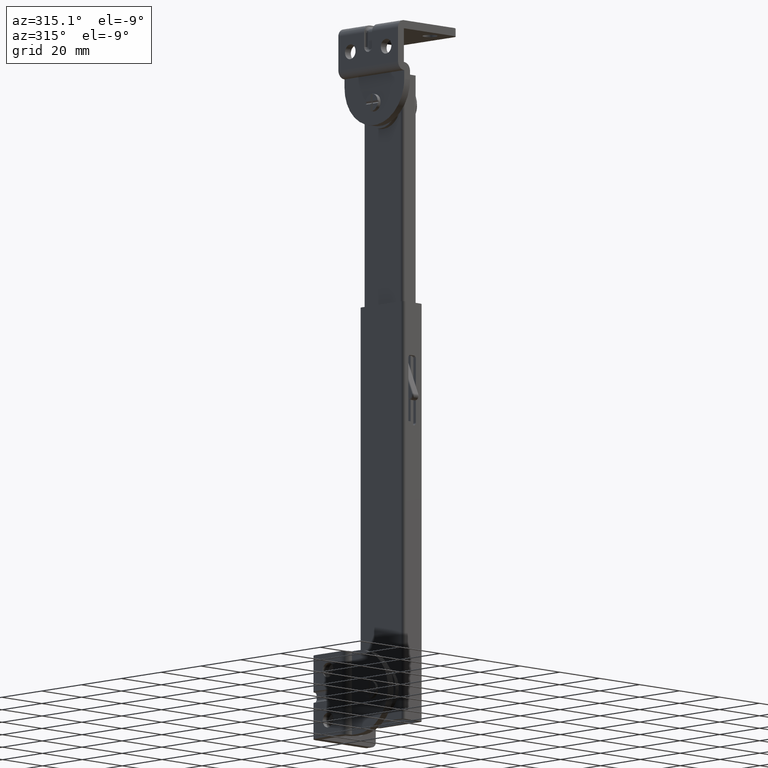
[diagram: clean part render]
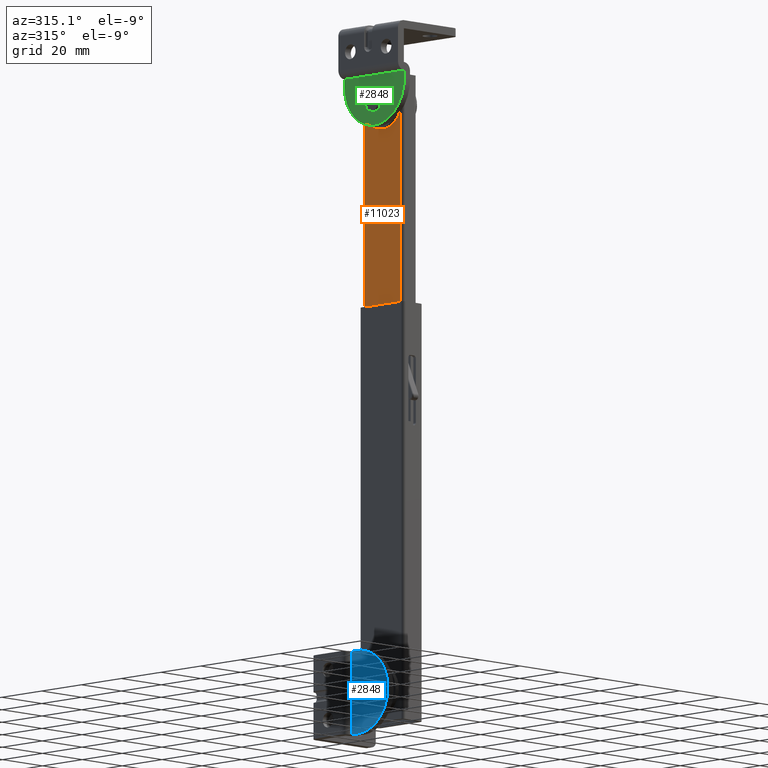
[diagram: same view with three faces highlighted in distinct colors, each labeled with its STEP entity id]
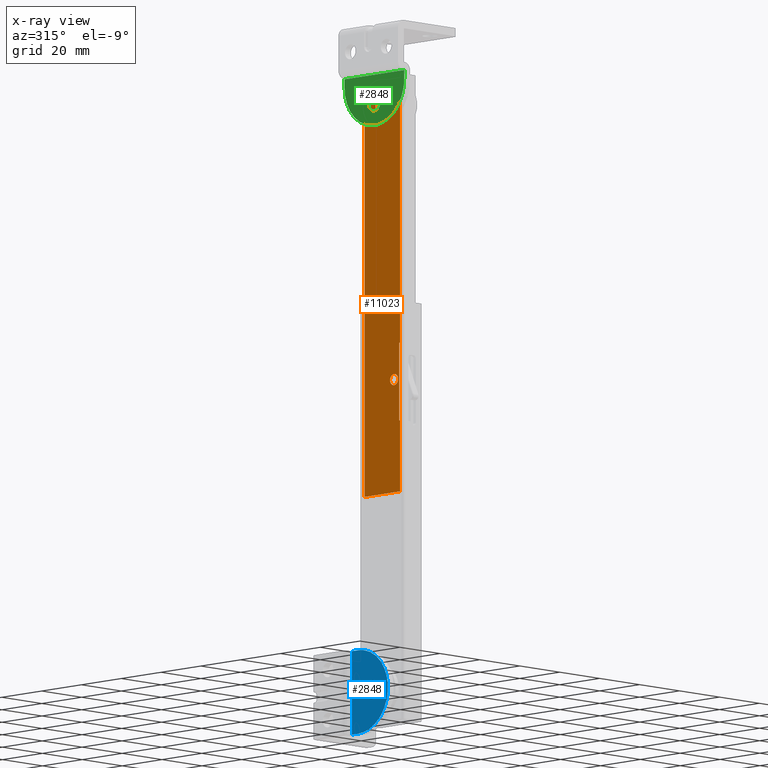
[diagram: x-ray of the same camera — body ghosted, the three highlighted faces saturated]
A machine part, auxiliary view with three faces highlighted in distinct colors.
The next image is the same camera in x-ray (body ghosted, the three faces saturated) — at least one of them is partly hidden behind the body in this view.
Their STEP definitions:

[orange] entity #11023 — the highlighted face is a freeform B-spline surface patch.
#9701=CARTESIAN_POINT('',(-8.800003000000000,3.969064855041456,210.503487989596810));
#9702=VERTEX_POINT('',#9701);
#9708=CARTESIAN_POINT('',(-8.800003000000000,-1.421085E-014,207.0));
#9709=VERTEX_POINT('',#9708);
#9710=CARTESIAN_POINT('',(-8.800003000000000,-1.421085E-014,207.0));
#9711=CARTESIAN_POINT('',(-8.800003000000000,3.530794396864419,207.0));
#9712=CARTESIAN_POINT('',(-8.800003000000000,3.969064855041455,210.503487989596830));
#9720=(BOUNDED_CURVE()B_SPLINE_CURVE(2,(#9710,#9711,#9712),.UNSPECIFIED.,.F.,.U.)B_SPLINE_CURVE_WITH_KNOTS((3,3),(0.500000000000000,0.728526070852209),.UNSPECIFIED.)CURVE()GEOMETRIC_REPRESENTATION_ITEM()RATIONAL_B_SPLINE_CURVE((1.0,0.732265054101222,0.954005429931055))REPRESENTATION_ITEM(''));
#9721=EDGE_CURVE('',#9709,#9702,#9720,.T.);
#9723=CARTESIAN_POINT('',(-8.800002999999999,-3.999847692236253,211.034906144336300));
#9724=VERTEX_POINT('',#9723);
#9725=CARTESIAN_POINT('',(-8.800002999999999,-3.999847692236254,211.034906144336330));
#9726=CARTESIAN_POINT('',(-8.800003000000000,-4.000000000000014,211.017453405625730));
#9727=CARTESIAN_POINT('',(-8.800003000000000,-4.000000000000014,211.0));
#9728=CARTESIAN_POINT('',(-8.800003000000000,-4.000000000000015,207.000000000000090));
#9729=CARTESIAN_POINT('',(-8.800003000000000,-1.421085E-014,207.0));
#9737=(BOUNDED_CURVE()B_SPLINE_CURVE(2,(#9725,#9726,#9727,#9728,#9729),.UNSPECIFIED.,.F.,.U.)B_SPLINE_CURVE_WITH_KNOTS((3,2,3),(0.248460105458671,0.250000000000000,0.500000000000000),.UNSPECIFIED.)CURVE()GEOMETRIC_REPRESENTATION_ITEM()RATIONAL_B_SPLINE_CURVE((0.996414027622872,0.998195901324627,1.0,0.707106781186548,1.0))REPRESENTATION_ITEM(''));
#9738=EDGE_CURVE('',#9724,#9709,#9737,.T.);
#9818=CARTESIAN_POINT('',(-8.800003000000000,-1.421085E-014,215.0));
#9819=VERTEX_POINT('',#9818);
#9820=CARTESIAN_POINT('',(-8.800003000000000,-1.421085E-014,215.0));
#9821=CARTESIAN_POINT('',(-8.800003000000000,-3.965244837734675,214.999999999999970));
#9822=CARTESIAN_POINT('',(-8.800002999999999,-3.999847692236253,211.034906144336250));
#9830=(BOUNDED_CURVE()B_SPLINE_CURVE(2,(#9820,#9821,#9822),.UNSPECIFIED.,.F.,.U.)B_SPLINE_CURVE_WITH_KNOTS((3,3),(0.0,0.248460105458671),.UNSPECIFIED.)CURVE()GEOMETRIC_REPRESENTATION_ITEM()RATIONAL_B_SPLINE_CURVE((1.0,0.708910879861920,0.996414027622873))REPRESENTATION_ITEM(''));
#9831=EDGE_CURVE('',#9819,#9724,#9830,.T.);
#9833=CARTESIAN_POINT('',(-8.800003000000000,3.969064855041455,210.503487989596780));
#9834=CARTESIAN_POINT('',(-8.800003000000000,3.999999999999987,210.750780287757690));
#9835=CARTESIAN_POINT('',(-8.800003000000000,3.999999999999986,211.0));
#9836=CARTESIAN_POINT('',(-8.800003000000000,3.999999999999987,214.999999999999940));
#9837=CARTESIAN_POINT('',(-8.800003000000000,-1.421085E-014,215.0));
#9845=(BOUNDED_CURVE()B_SPLINE_CURVE(2,(#9833,#9834,#9835,#9836,#9837),.UNSPECIFIED.,.F.,.U.)B_SPLINE_CURVE_WITH_KNOTS((3,2,3),(0.728526070852209,0.750000000000000,1.0),.UNSPECIFIED.)CURVE()GEOMETRIC_REPRESENTATION_ITEM()RATIONAL_B_SPLINE_CURVE((0.954005429931057,0.974841727085326,1.0,0.707106781186548,1.0))REPRESENTATION_ITEM(''));
#9846=EDGE_CURVE('',#9702,#9819,#9845,.T.);
#10090=CARTESIAN_POINT('',(-8.800003000000000,-3.277517647970107,111.377902916321600));
#10091=VERTEX_POINT('',#10090);
#10097=CARTESIAN_POINT('',(-8.800003000000000,-5.273787244531961,109.500000000000000));
#10098=VERTEX_POINT('',#10097);
#10099=CARTESIAN_POINT('',(-8.800003000000000,-5.273787244531961,109.500000000000000));
#10100=CARTESIAN_POINT('',(-8.800003000000000,-3.392375119423887,109.499999999999990));
#10101=CARTESIAN_POINT('',(-8.800003000000000,-3.277517647970108,111.377902916321560));
#10109=(BOUNDED_CURVE()B_SPLINE_CURVE(2,(#10099,#10100,#10101),.UNSPECIFIED.,.F.,.U.)B_SPLINE_CURVE_WITH_KNOTS((3,3),(0.500000000000000,0.739332961445264),.UNSPECIFIED.)CURVE()GEOMETRIC_REPRESENTATION_ITEM()RATIONAL_B_SPLINE_CURVE((1.0,0.719603994216562,0.976072039965714))REPRESENTATION_ITEM(''));
#10110=EDGE_CURVE('',#10098,#10091,#10109,.T.);
#10112=CARTESIAN_POINT('',(-8.800003000000000,-7.259806296630485,111.736068474603600));
#10113=VERTEX_POINT('',#10112);
#10114=CARTESIAN_POINT('',(-8.800003000000000,-7.259806296630485,111.736068474603660));
#10115=CARTESIAN_POINT('',(-8.800003000000000,-7.273787244531961,111.618448244649880));
#10116=CARTESIAN_POINT('',(-8.800003000000000,-7.273787244531961,111.500000000000000));
#10117=CARTESIAN_POINT('',(-8.800003000000000,-7.273787244531961,109.499999999999990));
#10118=CARTESIAN_POINT('',(-8.800003000000000,-5.273787244531961,109.500000000000000));
#10126=(BOUNDED_CURVE()B_SPLINE_CURVE(2,(#10114,#10115,#10116,#10117,#10118),.UNSPECIFIED.,.F.,.U.)B_SPLINE_CURVE_WITH_KNOTS((3,2,3),(0.229562472615307,0.250000000000000,0.500000000000000),.UNSPECIFIED.)CURVE()GEOMETRIC_REPRESENTATION_ITEM()RATIONAL_B_SPLINE_CURVE((0.956026752423187,0.976055947278836,1.0,0.707106781186548,1.0))REPRESENTATION_ITEM(''));
#10127=EDGE_CURVE('',#10113,#10098,#10126,.T.);
#10171=CARTESIAN_POINT('',(-8.800003000000000,-5.273787244531961,113.500000000000000));
#10172=VERTEX_POINT('',#10171);
#10173=CARTESIAN_POINT('',(-8.800003000000000,-5.273787244531961,113.500000000000000));
#10174=CARTESIAN_POINT('',(-8.800003000000000,-7.050136286904866,113.500000000000000));
#10175=CARTESIAN_POINT('',(-8.800003000000000,-7.259806296630485,111.736068474603630));
#10183=(BOUNDED_CURVE()B_SPLINE_CURVE(2,(#10173,#10174,#10175),.UNSPECIFIED.,.F.,.U.)B_SPLINE_CURVE_WITH_KNOTS((3,3),(0.0,0.229562472615307),.UNSPECIFIED.)CURVE()GEOMETRIC_REPRESENTATION_ITEM()RATIONAL_B_SPLINE_CURVE((1.0,0.731050833907711,0.956026752423187))REPRESENTATION_ITEM(''));
#10184=EDGE_CURVE('',#10172,#10113,#10183,.T.);
#10186=CARTESIAN_POINT('',(-8.800003000000000,-3.277517647970108,111.377902916321590));
#10187=CARTESIAN_POINT('',(-8.800003000000000,-3.273787244531961,111.438894468781210));
#10188=CARTESIAN_POINT('',(-8.800003000000000,-3.273787244531960,111.500000000000000));
#10189=CARTESIAN_POINT('',(-8.800003000000000,-3.273787244531960,113.500000000000000));
#10190=CARTESIAN_POINT('',(-8.800003000000000,-5.273787244531961,113.500000000000000));
#10198=(BOUNDED_CURVE()B_SPLINE_CURVE(2,(#10186,#10187,#10188,#10189,#10190),.UNSPECIFIED.,.F.,.U.)B_SPLINE_CURVE_WITH_KNOTS((3,2,3),(0.739332961445264,0.750000000000000,1.0),.UNSPECIFIED.)CURVE()GEOMETRIC_REPRESENTATION_ITEM()RATIONAL_B_SPLINE_CURVE((0.976072039965713,0.987502786969985,1.0,0.707106781186548,1.0))REPRESENTATION_ITEM(''));
#10199=EDGE_CURVE('',#10091,#10172,#10198,.T.);
#10411=CARTESIAN_POINT('',(-8.800003000000000,-7.900000000000000,96.500000000000000));
#10412=VERTEX_POINT('',#10411);
#10413=CARTESIAN_POINT('',(-8.800003000000000,-8.300000000000001,96.500000000000000));
#10414=VERTEX_POINT('',#10413);
#10415=CARTESIAN_POINT('',(-8.800003000000000,-7.900000000000000,96.500000000000000));
#10416=CARTESIAN_POINT('',(-8.800003000000000,-8.300000000000001,96.500000000000000));
#10417=QUASI_UNIFORM_CURVE('',1,(#10415,#10416),.UNSPECIFIED.,.F.,.U.);
#10418=EDGE_CURVE('',#10412,#10414,#10417,.T.);
#10493=CARTESIAN_POINT('',(-8.800003000000000,-8.300000000000001,124.500000000000000));
#10494=VERTEX_POINT('',#10493);
#10495=CARTESIAN_POINT('',(-8.800003000000000,-7.900000000000000,124.500000000000000));
#10496=VERTEX_POINT('',#10495);
#10497=CARTESIAN_POINT('',(-8.800003000000000,-8.300000000000001,124.500000000000000));
#10498=CARTESIAN_POINT('',(-8.800003000000000,-7.900000000000000,124.500000000000000));
#10499=QUASI_UNIFORM_CURVE('',1,(#10497,#10498),.UNSPECIFIED.,.F.,.U.);
#10500=EDGE_CURVE('',#10494,#10496,#10499,.T.);
#10602=CARTESIAN_POINT('',(-8.800003000000000,-7.900000000000000,124.500000000000000));
#10603=CARTESIAN_POINT('',(-8.800003000000000,-7.900000000000000,96.500000000000000));
#10604=QUASI_UNIFORM_CURVE('',1,(#10602,#10603),.UNSPECIFIED.,.F.,.U.);
#10605=EDGE_CURVE('',#10496,#10412,#10604,.T.);
#10670=CARTESIAN_POINT('',(-8.800003000000000,-8.300000000000001,71.0));
#10671=VERTEX_POINT('',#10670);
#10672=CARTESIAN_POINT('',(-8.800003000000000,-8.300000000000001,71.0));
#10673=CARTESIAN_POINT('',(-8.800003000000000,-8.300000000000001,96.500000000000000));
#10674=QUASI_UNIFORM_CURVE('',1,(#10672,#10673),.UNSPECIFIED.,.F.,.U.);
#10675=EDGE_CURVE('',#10671,#10414,#10674,.T.);
#10753=CARTESIAN_POINT('',(-8.800003000000000,9.500000000000000,71.0));
#10754=VERTEX_POINT('',#10753);
#10755=CARTESIAN_POINT('',(-8.800003000000000,9.500000000000000,71.0));
#10756=CARTESIAN_POINT('',(-8.800003000000000,-8.300000000000001,71.0));
#10757=QUASI_UNIFORM_CURVE('',1,(#10755,#10756),.UNSPECIFIED.,.F.,.U.);
#10758=EDGE_CURVE('',#10754,#10671,#10757,.T.);
#10831=CARTESIAN_POINT('',(-8.800003000000000,9.500000000000000,221.0));
#10832=VERTEX_POINT('',#10831);
#10844=CARTESIAN_POINT('',(-8.800003000000000,9.500000000000000,221.0));
#10845=CARTESIAN_POINT('',(-8.800003000000000,9.500000000000000,71.0));
#10846=QUASI_UNIFORM_CURVE('',1,(#10844,#10845),.UNSPECIFIED.,.F.,.U.);
#10847=EDGE_CURVE('',#10832,#10754,#10846,.T.);
#10857=CARTESIAN_POINT('',(-8.800003000000000,-8.300000000000001,221.0));
#10858=VERTEX_POINT('',#10857);
#10859=CARTESIAN_POINT('',(-8.800003000000000,-8.300000000000001,221.0));
#10860=CARTESIAN_POINT('',(-8.800003000000000,9.500000000000000,221.0));
#10861=QUASI_UNIFORM_CURVE('',1,(#10859,#10860),.UNSPECIFIED.,.F.,.U.);
#10862=EDGE_CURVE('',#10858,#10832,#10861,.T.);
#10992=CARTESIAN_POINT('',(-8.800003000000000,-9.189110299687474,228.492499709270900));
#10993=CARTESIAN_POINT('',(-8.800003000000000,10.389110458831871,228.492499709270900));
#10994=CARTESIAN_POINT('',(-8.800003000000000,-9.189110299687474,63.507496267415569));
#10995=CARTESIAN_POINT('',(-8.800003000000000,10.389110458831871,63.507496267415569));
#10996=B_SPLINE_SURFACE_WITH_KNOTS('',1,1,((#10992,#10994),(#10993,#10995)),.UNSPECIFIED.,.F.,.F.,.U.,(2,2),(2,2),(0.0,19.578220758519350),(0.0,164.985003441855300),.UNSPECIFIED.);
#10997=ORIENTED_EDGE('',*,*,#10500,.F.);
#10998=CARTESIAN_POINT('',(-8.800003000000000,-8.300000000000001,124.500000000000000));
#10999=CARTESIAN_POINT('',(-8.800003000000000,-8.300000000000001,221.0));
#11000=QUASI_UNIFORM_CURVE('',1,(#10998,#10999),.UNSPECIFIED.,.F.,.U.);
#11001=EDGE_CURVE('',#10494,#10858,#11000,.T.);
#11002=ORIENTED_EDGE('',*,*,#11001,.T.);
#11003=ORIENTED_EDGE('',*,*,#10862,.T.);
#11004=ORIENTED_EDGE('',*,*,#10847,.T.);
#11005=ORIENTED_EDGE('',*,*,#10758,.T.);
#11006=ORIENTED_EDGE('',*,*,#10675,.T.);
#11007=ORIENTED_EDGE('',*,*,#10418,.F.);
#11008=ORIENTED_EDGE('',*,*,#10605,.F.);
#11009=EDGE_LOOP('',(#10997,#11002,#11003,#11004,#11005,#11006,#11007,#11008));
#11010=FACE_OUTER_BOUND('',#11009,.T.);
#11011=ORIENTED_EDGE('',*,*,#10110,.T.);
#11012=ORIENTED_EDGE('',*,*,#10199,.T.);
#11013=ORIENTED_EDGE('',*,*,#10184,.T.);
#11014=ORIENTED_EDGE('',*,*,#10127,.T.);
#11015=EDGE_LOOP('',(#11011,#11012,#11013,#11014));
#11016=FACE_BOUND('',#11015,.T.);
#11017=ORIENTED_EDGE('',*,*,#9831,.T.);
#11018=ORIENTED_EDGE('',*,*,#9738,.T.);
#11019=ORIENTED_EDGE('',*,*,#9721,.T.);
#11020=ORIENTED_EDGE('',*,*,#9846,.T.);
#11021=EDGE_LOOP('',(#11017,#11018,#11019,#11020));
#11022=FACE_BOUND('',#11021,.T.);
#11023=ADVANCED_FACE('',(#11010,#11016,#11022),#10996,.T.);

[blue] entity #2848 — the highlighted face is a freeform B-spline surface patch.
#79=CARTESIAN_POINT('',(-14.899993999999960,-3.026411952009537,310.378590407608900));
#80=VERTEX_POINT('',#79);
#86=CARTESIAN_POINT('',(-14.899993999999960,5.684342E-014,313.050000000000010));
#87=VERTEX_POINT('',#86);
#88=CARTESIAN_POINT('',(-14.899993999999964,-3.026411952009537,310.378590407608780));
#89=CARTESIAN_POINT('',(-14.899993999999968,-2.692230728189196,313.050000000000010));
#90=CARTESIAN_POINT('',(-14.899993999999960,5.684342E-014,313.050000000000010));
#98=(BOUNDED_CURVE()B_SPLINE_CURVE(2,(#88,#89,#90),.UNSPECIFIED.,.F.,.U.)B_SPLINE_CURVE_WITH_KNOTS((3,3),(0.271473929111733,0.500000000000000),.UNSPECIFIED.)CURVE()GEOMETRIC_REPRESENTATION_ITEM()RATIONAL_B_SPLINE_CURVE((0.954005430001031,0.732265054058976,1.0))REPRESENTATION_ITEM(''));
#99=EDGE_CURVE('',#80,#87,#98,.T.);
#101=CARTESIAN_POINT('',(-14.899993999999960,3.049883865322868,309.973384064104610));
#102=VERTEX_POINT('',#101);
#103=CARTESIAN_POINT('',(-14.899993999999960,5.684342E-014,313.050000000000010));
#104=CARTESIAN_POINT('',(-14.899993999999957,3.050000000000057,313.050000000000010));
#105=CARTESIAN_POINT('',(-14.899993999999960,3.050000000000057,310.0));
#106=CARTESIAN_POINT('',(-14.899993999999960,3.050000000000058,309.986691777371280));
#107=CARTESIAN_POINT('',(-14.899993999999964,3.049883865322868,309.973384064104660));
#115=(BOUNDED_CURVE()B_SPLINE_CURVE(2,(#103,#104,#105,#106,#107),.UNSPECIFIED.,.F.,.U.)B_SPLINE_CURVE_WITH_KNOTS((3,2,3),(0.500000000000000,0.750000000000000,0.751539894638242),.UNSPECIFIED.)CURVE()GEOMETRIC_REPRESENTATION_ITEM()RATIONAL_B_SPLINE_CURVE((1.0,0.707106781186547,1.0,0.998195901211087,0.996414027398589))REPRESENTATION_ITEM(''));
#116=EDGE_CURVE('',#87,#102,#115,.T.);
#196=CARTESIAN_POINT('',(-14.899993999999960,5.684342E-014,306.949999999999990));
#197=VERTEX_POINT('',#196);
#198=CARTESIAN_POINT('',(-14.899993999999964,3.049883865322868,309.973384064104610));
#199=CARTESIAN_POINT('',(-14.899993999999957,3.023499187109180,306.950000000000050));
#200=CARTESIAN_POINT('',(-14.899993999999960,5.684342E-014,306.949999999999990));
#208=(BOUNDED_CURVE()B_SPLINE_CURVE(2,(#198,#199,#200),.UNSPECIFIED.,.F.,.U.)B_SPLINE_CURVE_WITH_KNOTS((3,3),(0.751539894638241,1.0),.UNSPECIFIED.)CURVE()GEOMETRIC_REPRESENTATION_ITEM()RATIONAL_B_SPLINE_CURVE((0.996414027398592,0.708910879975459,1.0))REPRESENTATION_ITEM(''));
#209=EDGE_CURVE('',#102,#197,#208,.T.);
#211=CARTESIAN_POINT('',(-14.899993999999960,5.684342E-014,306.949999999999990));
#212=CARTESIAN_POINT('',(-14.899993999999957,-3.049999999999942,306.949999999999930));
#213=CARTESIAN_POINT('',(-14.899993999999960,-3.049999999999943,310.0));
#214=CARTESIAN_POINT('',(-14.899993999999964,-3.049999999999944,310.190030030257500));
#215=CARTESIAN_POINT('',(-14.899993999999964,-3.026411952009537,310.378590407608780));
#223=(BOUNDED_CURVE()B_SPLINE_CURVE(2,(#211,#212,#213,#214,#215),.UNSPECIFIED.,.F.,.U.)B_SPLINE_CURVE_WITH_KNOTS((3,2,3),(0.0,0.250000000000000,0.271473929111733),.UNSPECIFIED.)CURVE()GEOMETRIC_REPRESENTATION_ITEM()RATIONAL_B_SPLINE_CURVE((1.0,0.707106781186547,1.0,0.974841727127571,0.954005430001031))REPRESENTATION_ITEM(''));
#224=EDGE_CURVE('',#197,#80,#223,.T.);
#2453=CARTESIAN_POINT('',(-14.899994000000000,-15.0,317.0));
#2454=VERTEX_POINT('',#2453);
#2462=CARTESIAN_POINT('',(-14.899994000000000,15.0,317.0));
#2463=VERTEX_POINT('',#2462);
#2464=CARTESIAN_POINT('',(-14.899994000000000,15.000000000000060,317.0));
#2465=CARTESIAN_POINT('',(-14.899994000000000,15.000000000000055,301.999999999999940));
#2466=CARTESIAN_POINT('',(-14.899994000000000,5.551115E-014,302.0));
#2467=CARTESIAN_POINT('',(-14.899994000000000,-14.999999999999941,301.999999999999940));
#2468=CARTESIAN_POINT('',(-14.899994000000000,-14.999999999999940,317.0));
#2476=(BOUNDED_CURVE()B_SPLINE_CURVE(2,(#2464,#2465,#2466,#2467,#2468),.UNSPECIFIED.,.F.,.U.)B_SPLINE_CURVE_WITH_KNOTS((3,2,3),(0.0,0.500000000000000,1.0),.UNSPECIFIED.)CURVE()GEOMETRIC_REPRESENTATION_ITEM()RATIONAL_B_SPLINE_CURVE((1.0,0.707106781186547,1.0,0.707106781186547,1.0))REPRESENTATION_ITEM(''));
#2477=EDGE_CURVE('',#2463,#2454,#2476,.T.);
#2563=CARTESIAN_POINT('',(-14.899994000000000,-15.0,320.100006000000010));
#2564=VERTEX_POINT('',#2563);
#2570=CARTESIAN_POINT('',(-14.899994000000000,-15.0,320.100006000000010));
#2571=CARTESIAN_POINT('',(-14.899994000000000,-15.0,317.0));
#2572=QUASI_UNIFORM_CURVE('',1,(#2570,#2571),.UNSPECIFIED.,.F.,.U.);
#2573=EDGE_CURVE('',#2564,#2454,#2572,.T.);
#2668=CARTESIAN_POINT('',(-14.899994000000000,15.0,320.100006000000010));
#2669=VERTEX_POINT('',#2668);
#2670=CARTESIAN_POINT('',(-14.899994000000000,15.0,320.100006000000010));
#2671=CARTESIAN_POINT('',(-14.899994000000000,15.0,317.0));
#2672=QUASI_UNIFORM_CURVE('',1,(#2670,#2671),.UNSPECIFIED.,.F.,.U.);
#2673=EDGE_CURVE('',#2669,#2463,#2672,.T.);
#2827=CARTESIAN_POINT('',(-14.899994000000000,-16.498499941854170,301.095904735381910));
#2828=CARTESIAN_POINT('',(-14.899994000000000,-16.498499941854170,321.004101750098700));
#2829=CARTESIAN_POINT('',(-14.899994000000000,16.498500746516878,301.095904735381910));
#2830=CARTESIAN_POINT('',(-14.899994000000000,16.498500746516878,321.004101750098700));
#2831=B_SPLINE_SURFACE_WITH_KNOTS('',1,1,((#2827,#2829),(#2828,#2830)),.UNSPECIFIED.,.F.,.F.,.U.,(2,2),(2,2),(0.0,19.908197014716851),(0.0,32.997000688371060),.UNSPECIFIED.);
#2832=ORIENTED_EDGE('',*,*,#2673,.T.);
#2833=ORIENTED_EDGE('',*,*,#2477,.T.);
#2834=ORIENTED_EDGE('',*,*,#2573,.F.);
#2835=CARTESIAN_POINT('',(-14.899994000000000,15.0,320.100006000000010));
#2836=CARTESIAN_POINT('',(-14.899994000000000,-15.0,320.100006000000010));
#2837=QUASI_UNIFORM_CURVE('',1,(#2835,#2836),.UNSPECIFIED.,.F.,.U.);
#2838=EDGE_CURVE('',#2669,#2564,#2837,.T.);
#2839=ORIENTED_EDGE('',*,*,#2838,.F.);
#2840=EDGE_LOOP('',(#2832,#2833,#2834,#2839));
#2841=FACE_OUTER_BOUND('',#2840,.T.);
#2842=ORIENTED_EDGE('',*,*,#116,.F.);
#2843=ORIENTED_EDGE('',*,*,#99,.F.);
#2844=ORIENTED_EDGE('',*,*,#224,.F.);
#2845=ORIENTED_EDGE('',*,*,#209,.F.);
#2846=EDGE_LOOP('',(#2842,#2843,#2844,#2845));
#2847=FACE_BOUND('',#2846,.T.);
#2848=ADVANCED_FACE('',(#2841,#2847),#2831,.T.);

[green] entity #2848 — the highlighted face is a freeform B-spline surface patch.
#79=CARTESIAN_POINT('',(-14.899993999999960,-3.026411952009537,310.378590407608900));
#80=VERTEX_POINT('',#79);
#86=CARTESIAN_POINT('',(-14.899993999999960,5.684342E-014,313.050000000000010));
#87=VERTEX_POINT('',#86);
#88=CARTESIAN_POINT('',(-14.899993999999964,-3.026411952009537,310.378590407608780));
#89=CARTESIAN_POINT('',(-14.899993999999968,-2.692230728189196,313.050000000000010));
#90=CARTESIAN_POINT('',(-14.899993999999960,5.684342E-014,313.050000000000010));
#98=(BOUNDED_CURVE()B_SPLINE_CURVE(2,(#88,#89,#90),.UNSPECIFIED.,.F.,.U.)B_SPLINE_CURVE_WITH_KNOTS((3,3),(0.271473929111733,0.500000000000000),.UNSPECIFIED.)CURVE()GEOMETRIC_REPRESENTATION_ITEM()RATIONAL_B_SPLINE_CURVE((0.954005430001031,0.732265054058976,1.0))REPRESENTATION_ITEM(''));
#99=EDGE_CURVE('',#80,#87,#98,.T.);
#101=CARTESIAN_POINT('',(-14.899993999999960,3.049883865322868,309.973384064104610));
#102=VERTEX_POINT('',#101);
#103=CARTESIAN_POINT('',(-14.899993999999960,5.684342E-014,313.050000000000010));
#104=CARTESIAN_POINT('',(-14.899993999999957,3.050000000000057,313.050000000000010));
#105=CARTESIAN_POINT('',(-14.899993999999960,3.050000000000057,310.0));
#106=CARTESIAN_POINT('',(-14.899993999999960,3.050000000000058,309.986691777371280));
#107=CARTESIAN_POINT('',(-14.899993999999964,3.049883865322868,309.973384064104660));
#115=(BOUNDED_CURVE()B_SPLINE_CURVE(2,(#103,#104,#105,#106,#107),.UNSPECIFIED.,.F.,.U.)B_SPLINE_CURVE_WITH_KNOTS((3,2,3),(0.500000000000000,0.750000000000000,0.751539894638242),.UNSPECIFIED.)CURVE()GEOMETRIC_REPRESENTATION_ITEM()RATIONAL_B_SPLINE_CURVE((1.0,0.707106781186547,1.0,0.998195901211087,0.996414027398589))REPRESENTATION_ITEM(''));
#116=EDGE_CURVE('',#87,#102,#115,.T.);
#196=CARTESIAN_POINT('',(-14.899993999999960,5.684342E-014,306.949999999999990));
#197=VERTEX_POINT('',#196);
#198=CARTESIAN_POINT('',(-14.899993999999964,3.049883865322868,309.973384064104610));
#199=CARTESIAN_POINT('',(-14.899993999999957,3.023499187109180,306.950000000000050));
#200=CARTESIAN_POINT('',(-14.899993999999960,5.684342E-014,306.949999999999990));
#208=(BOUNDED_CURVE()B_SPLINE_CURVE(2,(#198,#199,#200),.UNSPECIFIED.,.F.,.U.)B_SPLINE_CURVE_WITH_KNOTS((3,3),(0.751539894638241,1.0),.UNSPECIFIED.)CURVE()GEOMETRIC_REPRESENTATION_ITEM()RATIONAL_B_SPLINE_CURVE((0.996414027398592,0.708910879975459,1.0))REPRESENTATION_ITEM(''));
#209=EDGE_CURVE('',#102,#197,#208,.T.);
#211=CARTESIAN_POINT('',(-14.899993999999960,5.684342E-014,306.949999999999990));
#212=CARTESIAN_POINT('',(-14.899993999999957,-3.049999999999942,306.949999999999930));
#213=CARTESIAN_POINT('',(-14.899993999999960,-3.049999999999943,310.0));
#214=CARTESIAN_POINT('',(-14.899993999999964,-3.049999999999944,310.190030030257500));
#215=CARTESIAN_POINT('',(-14.899993999999964,-3.026411952009537,310.378590407608780));
#223=(BOUNDED_CURVE()B_SPLINE_CURVE(2,(#211,#212,#213,#214,#215),.UNSPECIFIED.,.F.,.U.)B_SPLINE_CURVE_WITH_KNOTS((3,2,3),(0.0,0.250000000000000,0.271473929111733),.UNSPECIFIED.)CURVE()GEOMETRIC_REPRESENTATION_ITEM()RATIONAL_B_SPLINE_CURVE((1.0,0.707106781186547,1.0,0.974841727127571,0.954005430001031))REPRESENTATION_ITEM(''));
#224=EDGE_CURVE('',#197,#80,#223,.T.);
#2453=CARTESIAN_POINT('',(-14.899994000000000,-15.0,317.0));
#2454=VERTEX_POINT('',#2453);
#2462=CARTESIAN_POINT('',(-14.899994000000000,15.0,317.0));
#2463=VERTEX_POINT('',#2462);
#2464=CARTESIAN_POINT('',(-14.899994000000000,15.000000000000060,317.0));
#2465=CARTESIAN_POINT('',(-14.899994000000000,15.000000000000055,301.999999999999940));
#2466=CARTESIAN_POINT('',(-14.899994000000000,5.551115E-014,302.0));
#2467=CARTESIAN_POINT('',(-14.899994000000000,-14.999999999999941,301.999999999999940));
#2468=CARTESIAN_POINT('',(-14.899994000000000,-14.999999999999940,317.0));
#2476=(BOUNDED_CURVE()B_SPLINE_CURVE(2,(#2464,#2465,#2466,#2467,#2468),.UNSPECIFIED.,.F.,.U.)B_SPLINE_CURVE_WITH_KNOTS((3,2,3),(0.0,0.500000000000000,1.0),.UNSPECIFIED.)CURVE()GEOMETRIC_REPRESENTATION_ITEM()RATIONAL_B_SPLINE_CURVE((1.0,0.707106781186547,1.0,0.707106781186547,1.0))REPRESENTATION_ITEM(''));
#2477=EDGE_CURVE('',#2463,#2454,#2476,.T.);
#2563=CARTESIAN_POINT('',(-14.899994000000000,-15.0,320.100006000000010));
#2564=VERTEX_POINT('',#2563);
#2570=CARTESIAN_POINT('',(-14.899994000000000,-15.0,320.100006000000010));
#2571=CARTESIAN_POINT('',(-14.899994000000000,-15.0,317.0));
#2572=QUASI_UNIFORM_CURVE('',1,(#2570,#2571),.UNSPECIFIED.,.F.,.U.);
#2573=EDGE_CURVE('',#2564,#2454,#2572,.T.);
#2668=CARTESIAN_POINT('',(-14.899994000000000,15.0,320.100006000000010));
#2669=VERTEX_POINT('',#2668);
#2670=CARTESIAN_POINT('',(-14.899994000000000,15.0,320.100006000000010));
#2671=CARTESIAN_POINT('',(-14.899994000000000,15.0,317.0));
#2672=QUASI_UNIFORM_CURVE('',1,(#2670,#2671),.UNSPECIFIED.,.F.,.U.);
#2673=EDGE_CURVE('',#2669,#2463,#2672,.T.);
#2827=CARTESIAN_POINT('',(-14.899994000000000,-16.498499941854170,301.095904735381910));
#2828=CARTESIAN_POINT('',(-14.899994000000000,-16.498499941854170,321.004101750098700));
#2829=CARTESIAN_POINT('',(-14.899994000000000,16.498500746516878,301.095904735381910));
#2830=CARTESIAN_POINT('',(-14.899994000000000,16.498500746516878,321.004101750098700));
#2831=B_SPLINE_SURFACE_WITH_KNOTS('',1,1,((#2827,#2829),(#2828,#2830)),.UNSPECIFIED.,.F.,.F.,.U.,(2,2),(2,2),(0.0,19.908197014716851),(0.0,32.997000688371060),.UNSPECIFIED.);
#2832=ORIENTED_EDGE('',*,*,#2673,.T.);
#2833=ORIENTED_EDGE('',*,*,#2477,.T.);
#2834=ORIENTED_EDGE('',*,*,#2573,.F.);
#2835=CARTESIAN_POINT('',(-14.899994000000000,15.0,320.100006000000010));
#2836=CARTESIAN_POINT('',(-14.899994000000000,-15.0,320.100006000000010));
#2837=QUASI_UNIFORM_CURVE('',1,(#2835,#2836),.UNSPECIFIED.,.F.,.U.);
#2838=EDGE_CURVE('',#2669,#2564,#2837,.T.);
#2839=ORIENTED_EDGE('',*,*,#2838,.F.);
#2840=EDGE_LOOP('',(#2832,#2833,#2834,#2839));
#2841=FACE_OUTER_BOUND('',#2840,.T.);
#2842=ORIENTED_EDGE('',*,*,#116,.F.);
#2843=ORIENTED_EDGE('',*,*,#99,.F.);
#2844=ORIENTED_EDGE('',*,*,#224,.F.);
#2845=ORIENTED_EDGE('',*,*,#209,.F.);
#2846=EDGE_LOOP('',(#2842,#2843,#2844,#2845));
#2847=FACE_BOUND('',#2846,.T.);
#2848=ADVANCED_FACE('',(#2841,#2847),#2831,.T.);